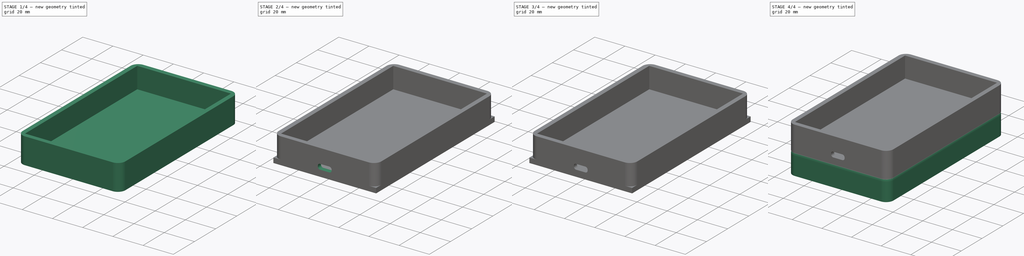
[diagram: build sequence overview — one tinted view per stage of 4, left to right]
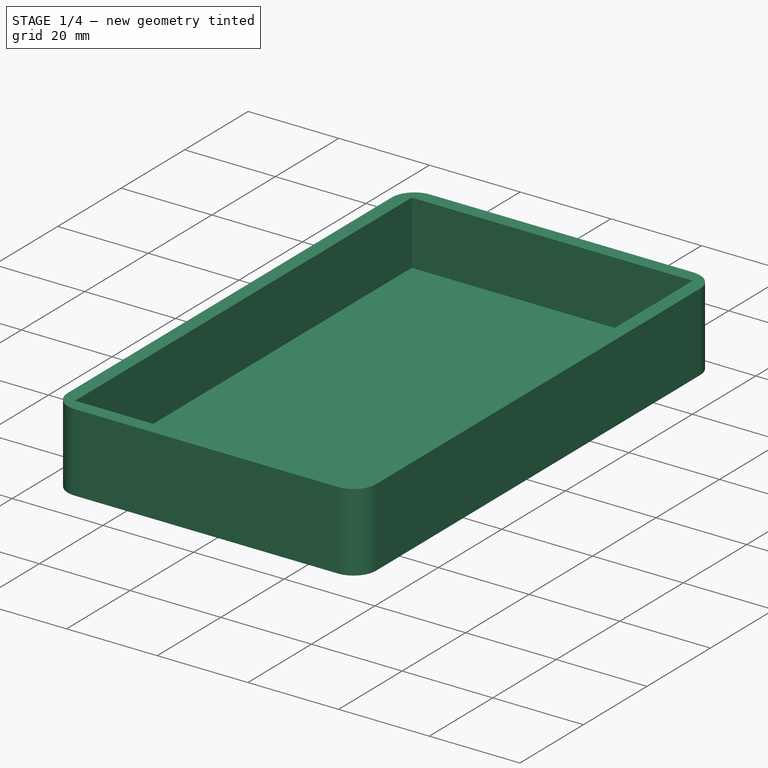
[diagram: stage 1 of 4 — iso view after this stage's code; geometry added in this stage tinted green]
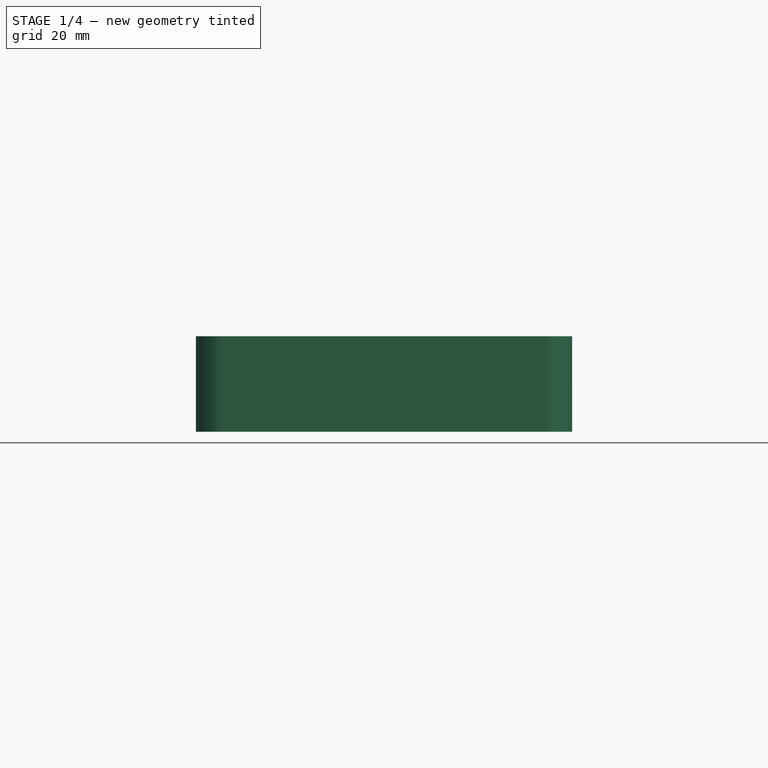
[diagram: stage 1 of 4 — front view after this stage's code; geometry added in this stage tinted green]
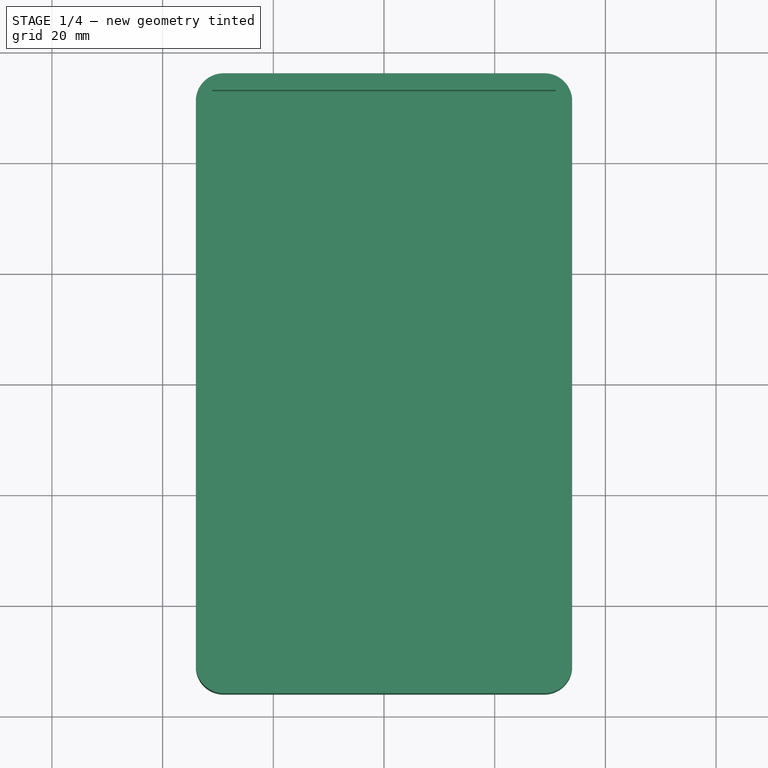
[diagram: stage 1 of 4 — top view after this stage's code; geometry added in this stage tinted green]
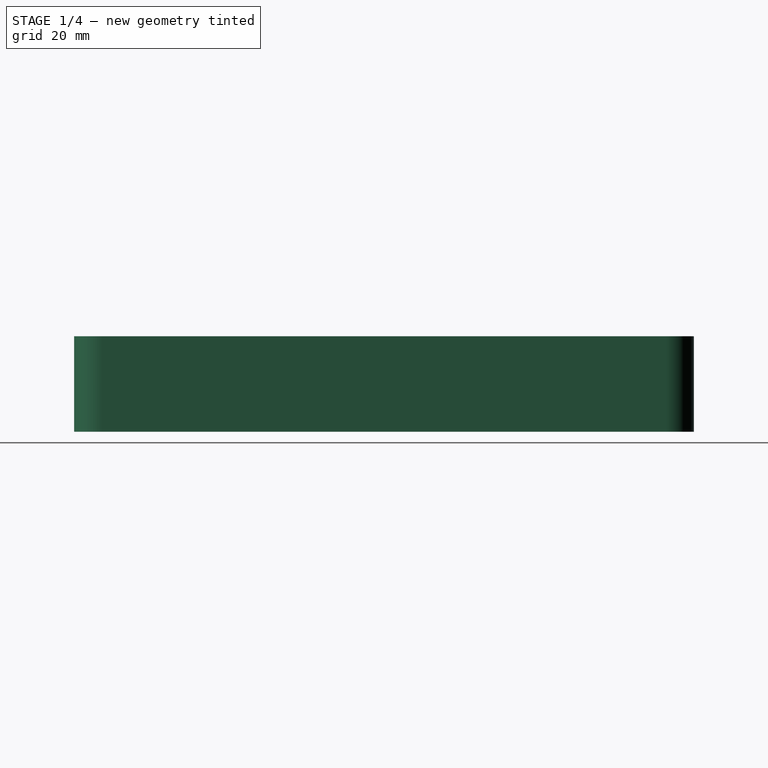
[diagram: stage 1 of 4 — right view after this stage's code; geometry added in this stage tinted green]
FCSTD DOCUMENT  (FreeCAD 1.1R38991 (Git))
Label: alarm4
License: All rights reserved
LicenseURL: https://en.wikipedia.org/wiki/All_rights_reserved
objects: Sketcher::SketchObject×9, PartDesign::Pocket×5, PartDesign::Pad×4, PartDesign::Fillet×2, PartDesign::Body×2
note: 53 computed .brp shape members not serialized (recipe doc carries the construction recipe); baked Part::Feature solids carry a one-line shape summary decoded from their .brp

FEATURE [Sketcher::SketchObject] Sketch005  label="baseSketch001"
  ArcFitTolerance = 1e-06
  AttachmentSupport = -> [XY_Plane001]
  FullyConstrained = true
  MakeInternals = false
  MapMode = 5
  sketch-geometry (4):
    g0: LineSegment StartX=-34 StartY=56 StartZ=0 EndX=-34 EndY=-56 EndZ=0
    g1: LineSegment StartX=-34 StartY=-56 StartZ=0 EndX=34 EndY=-56 EndZ=0
    g2: LineSegment StartX=34 StartY=-56 StartZ=0 EndX=34 EndY=56 EndZ=0
    g3: LineSegment StartX=34 StartY=56 StartZ=0 EndX=-34 EndY=56 EndZ=0
  constraints (9):
    c: Coincident(g0,g1)
    c: Coincident(g1,g2)
    c: Coincident(g2,g3)
    c: Coincident(g3,g0)
    c: Symmetric(g0,g2,g-2)
    c: Symmetric(g0,g0,g-1)
    c: Symmetric(g0,g1,g-2)
    c: DistanceX(g3,g3) = 68
    c: DistanceY(g0,g0) = 112
FEATURE [PartDesign::Pad] Pad002  label="basePad001"
  Direction = (0,0,1)
  Length = 3.25
  Length2 = 10
  Profile = -> Sketch005
  ReferenceAxis = -> Sketch005 [N_Axis]
  Refine = true
  Suppressed = false
  Type = 0
FEATURE [Sketcher::SketchObject] Sketch006
  ArcFitTolerance = 1e-06
  AttachmentSupport = -> [Pad002]
  ExternalGeometry = -> [Pad002]
  FullyConstrained = true
  MakeInternals = false
  MapMode = 5
  Placement = pos=(0,0,3.25) rot=(0,0,1;0rad)
  sketch-geometry (8):
    g0: LineSegment StartX=-31 StartY=53 StartZ=0 EndX=-31 EndY=-53 EndZ=0
    g1: LineSegment StartX=-31 StartY=-53 StartZ=0 EndX=31 EndY=-53 EndZ=0
    g2: LineSegment StartX=31 StartY=-53 StartZ=0 EndX=31 EndY=53 EndZ=0
    g3: LineSegment StartX=31 StartY=53 StartZ=0 EndX=-31 EndY=53 EndZ=0
    g4: LineSegment StartX=-34 StartY=56 StartZ=0 EndX=-34 EndY=-56 EndZ=0
    g5: LineSegment StartX=-34 StartY=-56 StartZ=0 EndX=34 EndY=-56 EndZ=0
    g6: LineSegment StartX=34 StartY=-56 StartZ=0 EndX=34 EndY=56 EndZ=0
    g7: LineSegment StartX=34 StartY=56 StartZ=0 EndX=-34 EndY=56 EndZ=0
  constraints (20):
    c: Coincident(g0,g1)
    c: Coincident(g1,g2)
    c: Coincident(g2,g3)
    c: Coincident(g3,g0)
    c: Vertical(g2)
    c: Horizontal(g1)
    c: Symmetric(g0,g2,g-2)
    c: Symmetric(g0,g0,g-1)
    c: Distance(g0,g-4) = 3
    c: Distance(g0,g-5) = 3
    c: Coincident(g4,g5)
    c: Coincident(g5,g6)
    c: Coincident(g6,g7)
    c: Coincident(g7,g4)
    c: Vertical(g4)
    c: Vertical(g6)
    c: Horizontal(g5)
    c: Horizontal(g7)
    c: Coincident(g4,g-5)
    c: Coincident(g5,g-6)
FEATURE [PartDesign::Pad] Pad003  label="padWall001"
  BaseFeature = -> Pad002
  Direction = (0,0,1)
  Length = 14
  Length2 = 10
  Profile = -> Sketch006
  ReferenceAxis = -> Sketch006 [N_Axis]
  Refine = true
  Suppressed = false
  Type = 0
FEATURE [PartDesign::Fillet] Fillet001  label="filletCorners"
  Base = -> Pad003 [Edge24,Edge5,Edge7,Edge23]
  BaseFeature = -> Pad003
  Radius = 5
  Refine = true
  SupportTransform = false
  Suppressed = false
  UseAllEdges = false
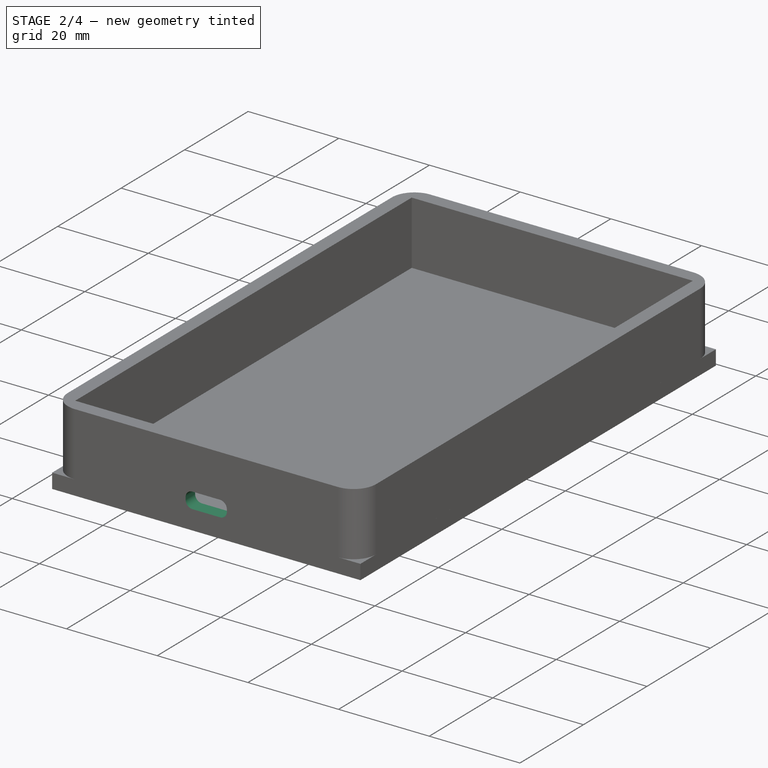
[diagram: stage 2 of 4 — iso view after this stage's code; geometry added in this stage tinted green]
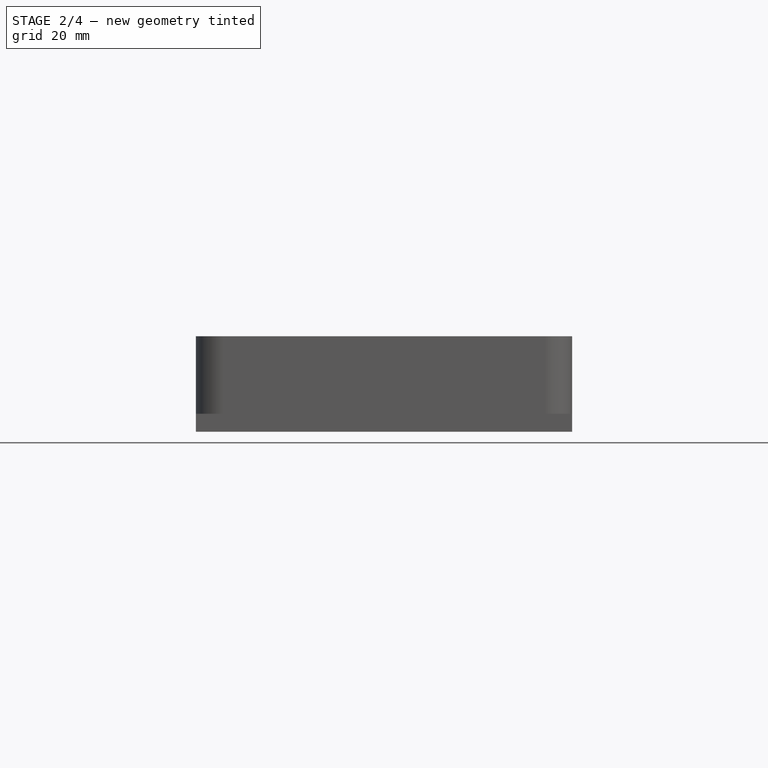
[diagram: stage 2 of 4 — front view after this stage's code; geometry added in this stage tinted green]
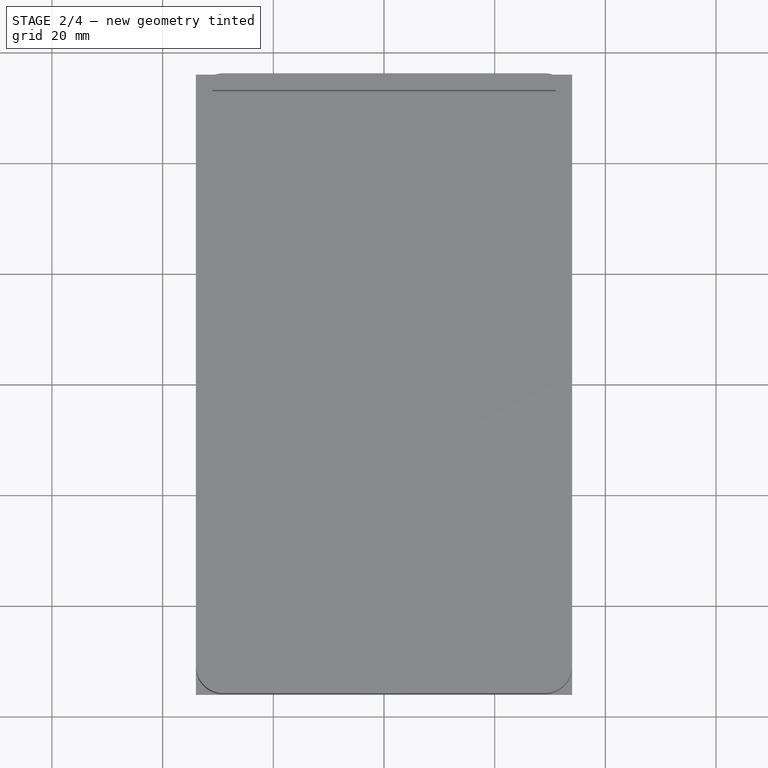
[diagram: stage 2 of 4 — top view after this stage's code; geometry added in this stage tinted green]
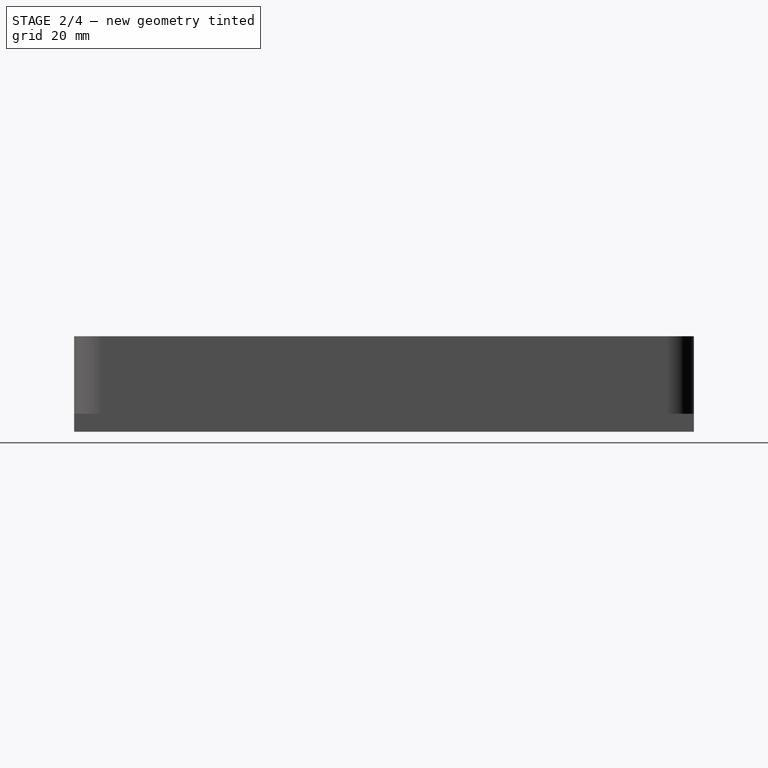
[diagram: stage 2 of 4 — right view after this stage's code; geometry added in this stage tinted green]
FEATURE [Sketcher::SketchObject] Sketch  label="baseSketch"
  ArcFitTolerance = 1e-06
  AttachmentSupport = -> [XY_Plane]
  FullyConstrained = true
  MakeInternals = false
  MapMode = 5
  sketch-geometry (4):
    g0: LineSegment StartX=-34 StartY=56 StartZ=0 EndX=-34 EndY=-56 EndZ=0
    g1: LineSegment StartX=-34 StartY=-56 StartZ=0 EndX=34 EndY=-56 EndZ=0
    g2: LineSegment StartX=34 StartY=-56 StartZ=0 EndX=34 EndY=56 EndZ=0
    g3: LineSegment StartX=34 StartY=56 StartZ=0 EndX=-34 EndY=56 EndZ=0
  constraints (9):
    c: Coincident(g0,g1)
    c: Coincident(g1,g2)
    c: Coincident(g2,g3)
    c: Coincident(g3,g0)
    c: Symmetric(g0,g2,g-2)
    c: Symmetric(g0,g0,g-1)
    c: Symmetric(g1,g0,g-2)
    c: DistanceX(g3,g3) = 68
    c: DistanceY(g0,g0) = 112
FEATURE [PartDesign::Pad] Pad  label="basePad"
  Direction = (0,0,1)
  Length = 3.25
  Length2 = 10
  Profile = -> Sketch
  ReferenceAxis = -> Sketch [N_Axis]
  Refine = true
  Suppressed = false
  Type = 0
FEATURE [Sketcher::SketchObject] Sketch001  label="sketchKeypad"
  ArcFitTolerance = 1e-06
  AttachmentSupport = -> [Pad]
  ExternalGeometry = -> [Pad]
  FullyConstrained = true
  MakeInternals = false
  MapMode = 5
  Placement = pos=(0,0,3.25) rot=(0,0,1;0rad)
  sketch-geometry (12):
    g0: LineSegment StartX=-23.1 StartY=14.9 StartZ=0 EndX=-23.1 EndY=-36.1 EndZ=0
    g1: LineSegment StartX=-20.1 StartY=-39.1 StartZ=0 EndX=20.1 EndY=-39.1 EndZ=0
    g2: LineSegment StartX=23.1 StartY=-36.1 StartZ=0 EndX=23.1 EndY=14.9 EndZ=0
    g3: LineSegment StartX=20.1 StartY=17.9 StartZ=0 EndX=-20.1 EndY=17.9 EndZ=0
    g4: ArcOfCircle CenterX=-20.1 CenterY=14.9 CenterZ=0 NormalX=0 NormalY=0 NormalZ=1 AngleXU=0 Radius=3 StartAngle=1.5708 EndAngle=3.14159
    g5: GeomPoint [constr] X=-23.1 Y=17.9 Z=0
    g6: ArcOfCircle CenterX=20.1 CenterY=14.9 CenterZ=0 NormalX=0 NormalY=0 NormalZ=1 AngleXU=0 Radius=3 StartAngle=0 EndAngle=1.5708
    g7: GeomPoint [constr] X=23.1 Y=17.9 Z=0
    g8: ArcOfCircle CenterX=20.1 CenterY=-36.1 CenterZ=0 NormalX=0 NormalY=0 NormalZ=1 AngleXU=0 Radius=3 StartAngle=4.71239 EndAngle=6.28319
    g9: GeomPoint [constr] X=23.1 Y=-39.1 Z=0
    g10: ArcOfCircle CenterX=-20.1 CenterY=-36.1 CenterZ=0 NormalX=0 NormalY=0 NormalZ=1 AngleXU=0 Radius=3 StartAngle=3.14159 EndAngle=4.71239
    g11: GeomPoint [constr] X=-23.1 Y=-39.1 Z=0
  constraints (26):
    c: Symmetric(g5,g7,g-2)
    c: Symmetric(g11,g9,g-2)
    c: Vertical(g0)
    c: DistanceX(g11,g9) = 46.2
    c: DistanceY(g9,g7) = 57
    c: Distance(g9,g-3) = 16.9
    c: PointOnObject(g5,g3)
    c: PointOnObject(g5,g0)
    c: Tangent(g3,g4) = -1.5708
    c: Tangent(g0,g4) = -1.5708
    c: PointOnObject(g7,g3)
    c: PointOnObject(g7,g2)
    c: Tangent(g3,g6) = -1.5708
    c: Tangent(g2,g6) = -1.5708
    c: PointOnObject(g9,g2)
    c: PointOnObject(g9,g1)
    c: Tangent(g2,g8) = -1.5708
    c: Tangent(g1,g8) = -1.5708
    c: PointOnObject(g11,g0)
    c: PointOnObject(g11,g1)
    c: Tangent(g0,g10) = -1.5708
    c: Tangent(g1,g10) = -1.5708
    c: Radius(g10) = 3
    c: Equal(g8,g10)
    c: Equal(g6,g10)
    c: Equal(g4,g10)
FEATURE [PartDesign::Pocket] Pocket  label="pocketKeypad"
  BaseFeature = -> Pad
  Direction = (0,0,-1)
  Length = 10
  Length2 = 5
  Profile = -> Sketch001
  ReferenceAxis = -> Sketch001 [N_Axis]
  Refine = true
  Suppressed = false
  Type = 0
FEATURE [PartDesign::Body] Body  label="front"
  AllowCompound = false
  Group = -> [Sketch,Pad,Sketch001,Pocket,Sketch002,Pocket001,Sketch003,Pocket002,Sketch004,Pad001,Fillet,Sketch008,Pocket004]
  Origin = -> Origin
  Tip = -> Pocket004
FEATURE [PartDesign::Pocket] Pocket005  label="pocketUSB"
  BaseFeature = -> Fillet001
  Direction = (0,1,-2e-16)
  Length = 5
  Length2 = 5
  Profile = -> Sketch007
  ReferenceAxis = -> Sketch007 [N_Axis]
  Refine = true
  Suppressed = false
  Type = 0
FEATURE [PartDesign::Body] Body001  label="back"
  AllowCompound = false
  Group = -> [Sketch005,Pad002,Sketch006,Pad003,Fillet001,Sketch007,Pocket005]
  Origin = -> Origin001
  Placement = pos=(0,0,-60) rot=(0,0,1;0rad)
  Tip = -> Pocket005
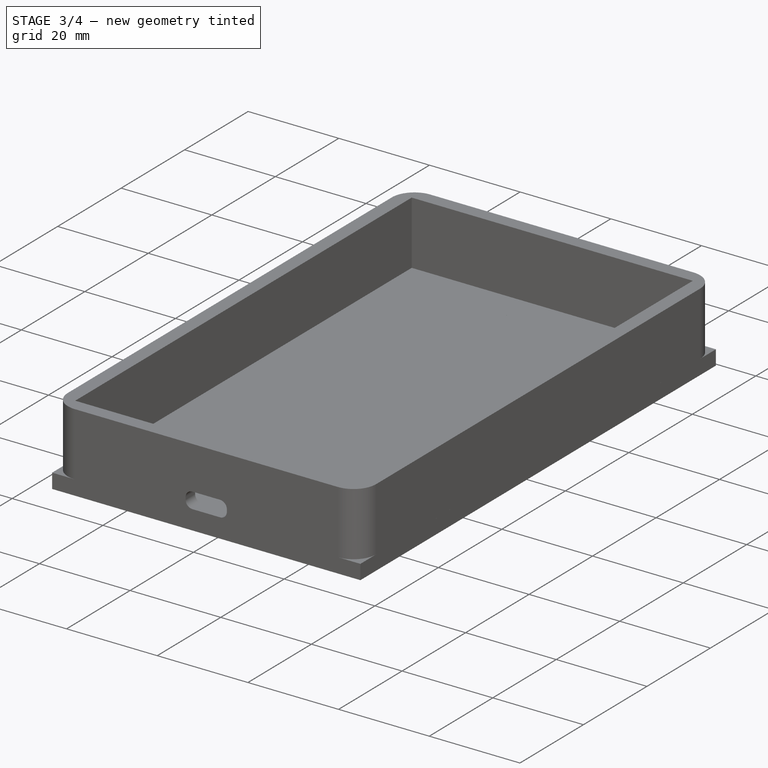
[diagram: stage 3 of 4 — iso view after this stage's code; geometry added in this stage tinted green]
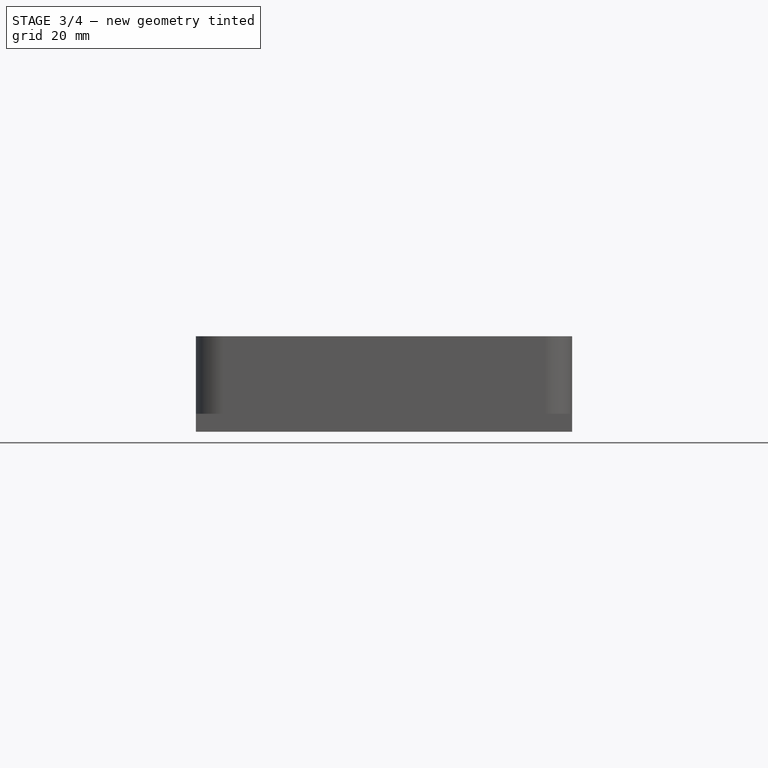
[diagram: stage 3 of 4 — front view after this stage's code; geometry added in this stage tinted green]
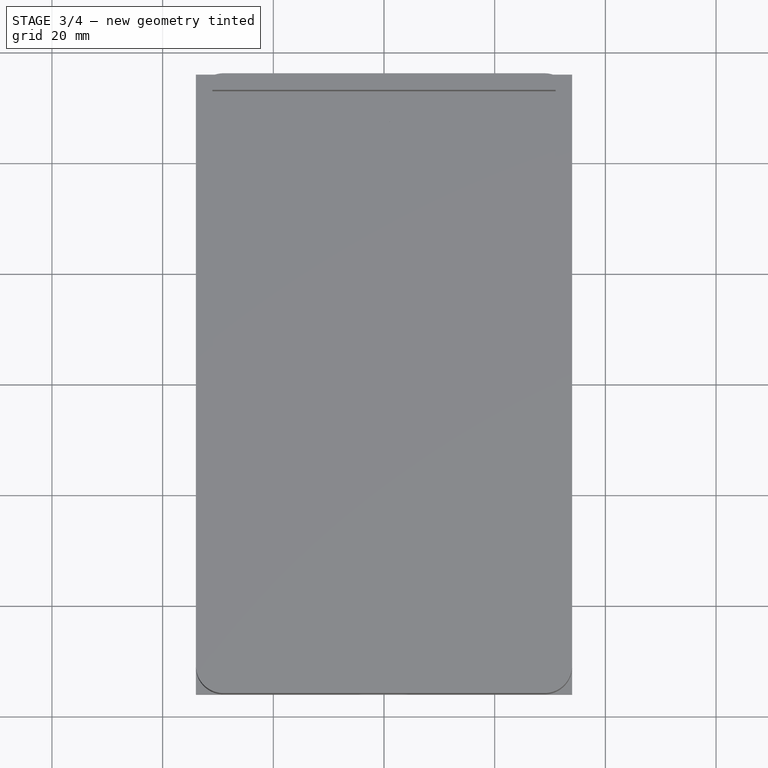
[diagram: stage 3 of 4 — top view after this stage's code; geometry added in this stage tinted green]
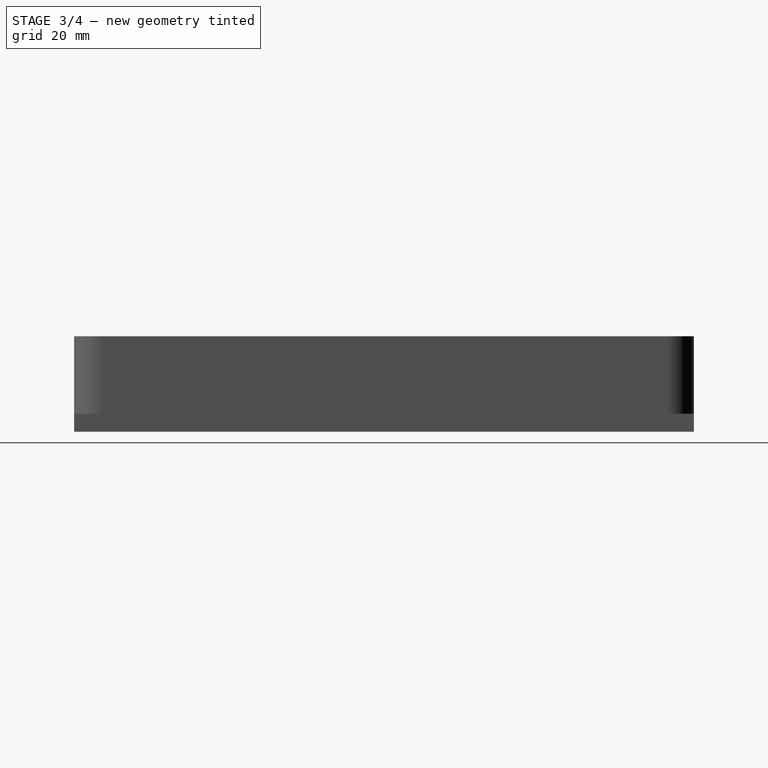
[diagram: stage 3 of 4 — right view after this stage's code; geometry added in this stage tinted green]
FEATURE [Sketcher::SketchObject] Sketch002  label="sketchPIR"
  ArcFitTolerance = 1e-06
  AttachmentSupport = -> [Pocket]
  ExternalGeometry = -> [Pocket]
  FullyConstrained = true
  MakeInternals = false
  MapMode = 5
  Placement = pos=(0,0,3.25) rot=(0,0,1;0rad)
  sketch-geometry (1):
    g0: Circle CenterX=0 CenterY=35.9 CenterZ=0 NormalX=0 NormalY=0 NormalZ=1 AngleXU=0 Radius=11.6
  constraints (3):
    c: Diameter(g0) = 23.2
    c: PointOnObject(g0,g-2)
    c: Distance(g0,g-6) = 18
FEATURE [PartDesign::Pocket] Pocket001  label="pocketPIR"
  BaseFeature = -> Pocket
  Direction = (0,0,-1)
  Length = 10
  Length2 = 5
  Profile = -> Sketch002
  ReferenceAxis = -> Sketch002 [N_Axis]
  Refine = true
  Suppressed = false
  Type = 0
FEATURE [Sketcher::SketchObject] Sketch003  label="sketchLED"
  ArcFitTolerance = 1e-06
  AttachmentSupport = -> [Pocket001]
  ExternalGeometry = -> [Pocket001]
  FullyConstrained = true
  MakeInternals = false
  MapMode = 5
  Placement = pos=(0,0,3.25) rot=(0,0,1;0rad)
  sketch-geometry (1):
    g0: Circle CenterX=23.1 CenterY=45.1 CenterZ=0 NormalX=0 NormalY=0 NormalZ=1 AngleXU=0 Radius=2.6
  constraints (3):
    c: Diameter(g0) = 5.2
    c: Distance(g0,g-3) = 10.9
    c: Distance(g0,g-4) = 10.9
FEATURE [PartDesign::Pocket] Pocket002  label="pocketLED"
  BaseFeature = -> Pocket001
  Direction = (0,0,-1)
  Length = 10
  Length2 = 5
  Profile = -> Sketch003
  ReferenceAxis = -> Sketch003 [N_Axis]
  Refine = true
  Suppressed = false
  Type = 0
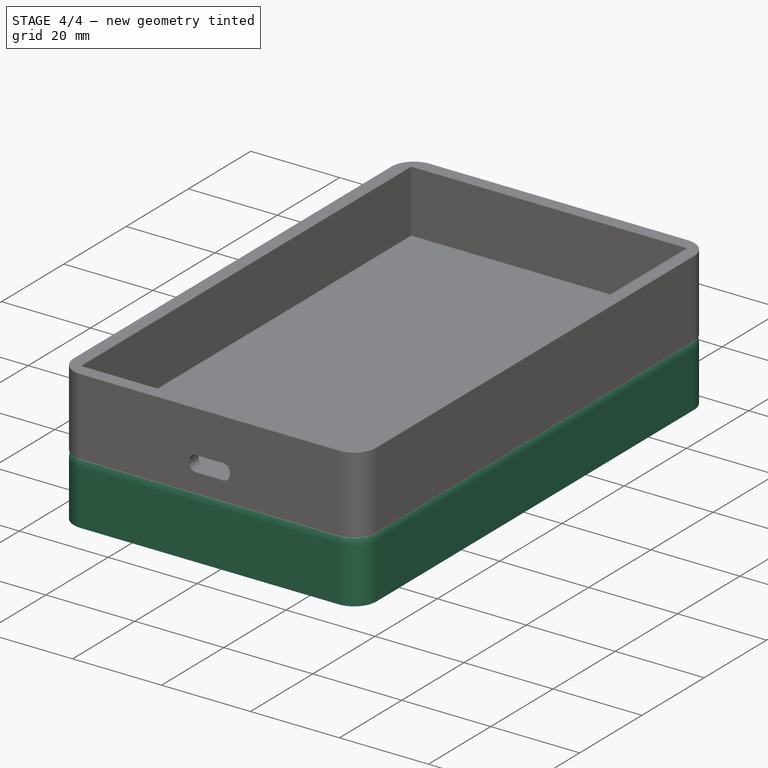
[diagram: stage 4 of 4 — iso view after this stage's code; geometry added in this stage tinted green]
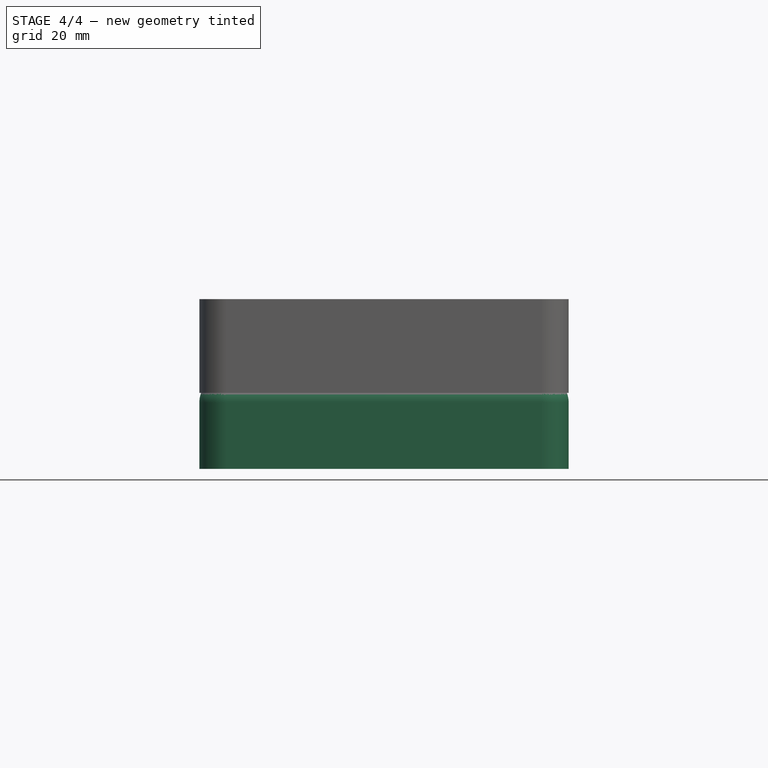
[diagram: stage 4 of 4 — front view after this stage's code; geometry added in this stage tinted green]
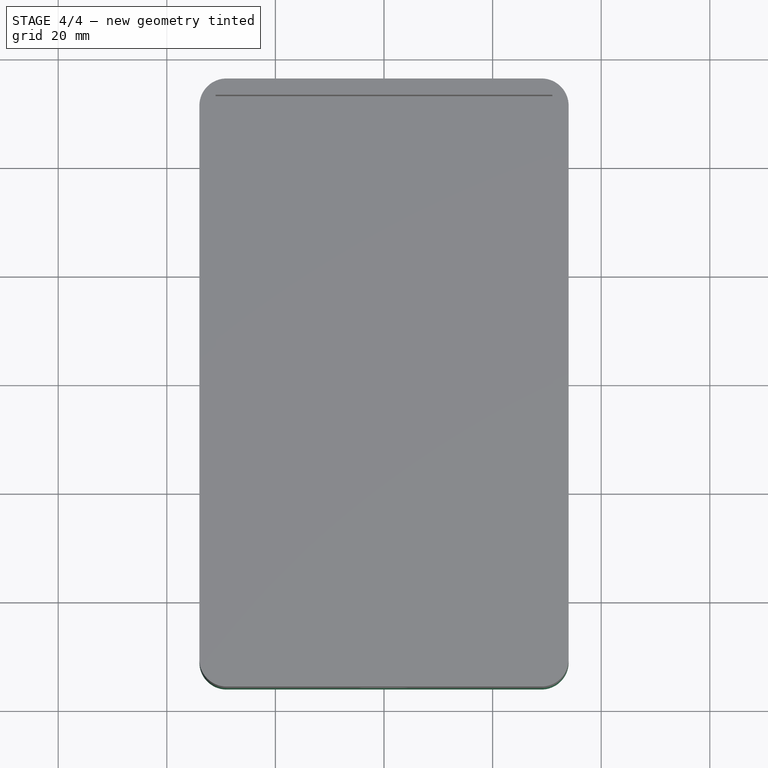
[diagram: stage 4 of 4 — top view after this stage's code; geometry added in this stage tinted green]
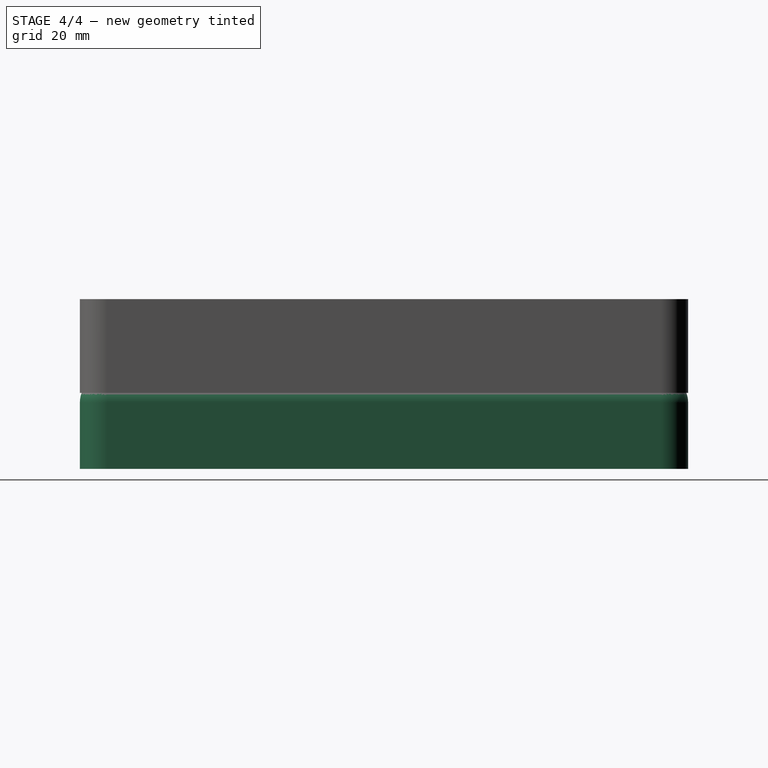
[diagram: stage 4 of 4 — right view after this stage's code; geometry added in this stage tinted green]
FEATURE [Sketcher::SketchObject] Sketch004  label="sketchWall"
  ArcFitTolerance = 1e-06
  AttachmentSupport = -> [Pocket002]
  ExternalGeometry = -> [Pocket002]
  FullyConstrained = true
  MakeInternals = false
  MapMode = 5
  Placement = pos=(0,0,0) rot=(1,0,0;3.14159rad)
  sketch-geometry (8):
    g0: LineSegment StartX=-34 StartY=56 StartZ=0 EndX=-34 EndY=-56 EndZ=0
    g1: LineSegment StartX=-34 StartY=-56 StartZ=0 EndX=34 EndY=-56 EndZ=0
    g2: LineSegment StartX=34 StartY=-56 StartZ=0 EndX=34 EndY=56 EndZ=0
    g3: LineSegment StartX=34 StartY=56 StartZ=0 EndX=-34 EndY=56 EndZ=0
    g4: LineSegment StartX=-31 StartY=53 StartZ=0 EndX=-31 EndY=-53 EndZ=0
    g5: LineSegment StartX=-31 StartY=-53 StartZ=0 EndX=31 EndY=-53 EndZ=0
    g6: LineSegment StartX=31 StartY=-53 StartZ=0 EndX=31 EndY=53 EndZ=0
    g7: LineSegment StartX=31 StartY=53 StartZ=0 EndX=-31 EndY=53 EndZ=0
  constraints (17):
    c: Coincident(g0,g1)
    c: Coincident(g1,g2)
    c: Coincident(g2,g3)
    c: Coincident(g3,g0)
    c: Coincident(g0,g-5)
    c: Coincident(g1,g-6)
    c: Coincident(g4,g5)
    c: Coincident(g5,g6)
    c: Coincident(g6,g7)
    c: Coincident(g7,g4)
    c: Coincident(g2,g-4)
    c: Coincident(g0,g-6)
    c: Symmetric(g6,g4,g-2)
    c: Symmetric(g4,g4,g-1)
    c: Symmetric(g5,g4,g-2)
    c: Distance(g6,g2) = 3
    c: Distance(g6,g3) = 3
FEATURE [PartDesign::Pad] Pad001  label="padWall"
  BaseFeature = -> Pocket002
  Direction = (0,0,-1)
  Length = 14
  Length2 = 10
  Profile = -> Sketch004
  ReferenceAxis = -> Sketch004 [N_Axis]
  Refine = true
  Suppressed = false
  Type = 0
FEATURE [PartDesign::Fillet] Fillet
  Base = -> Pad001 [Edge30,Edge29,Edge27,Edge28,Edge54,Edge52,Edge53,Edge51]
  BaseFeature = -> Pad001
  Radius = 5
  Refine = true
  SupportTransform = false
  Suppressed = false
  UseAllEdges = false
FEATURE [Sketcher::SketchObject] Sketch007  label="sketchUSB"
  ArcFitTolerance = 1e-06
  AttachmentSupport = -> [Fillet001]
  FullyConstrained = true
  MakeInternals = false
  MapMode = 5
  Placement = pos=(0,-56,0) rot=(1,0,0;1.5708rad)
  sketch-geometry (11):
    g0: LineSegment StartX=-3.05 StartY=4.25 StartZ=0 EndX=3.05 EndY=4.25 EndZ=0
    g1: LineSegment StartX=-4.55 StartY=5.75 StartZ=0 EndX=-4.55 EndY=6.25 EndZ=0
    g2: LineSegment StartX=-3.05 StartY=7.75 StartZ=0 EndX=3.05 EndY=7.75 EndZ=0
    g3: LineSegment StartX=4.55 StartY=6.25 StartZ=0 EndX=4.55 EndY=5.75 EndZ=0
    g4: ArcOfCircle CenterX=-3.05 CenterY=6.25 CenterZ=0 NormalX=0 NormalY=0 NormalZ=1 AngleXU=0 Radius=1.5 StartAngle=1.5708 EndAngle=3.14159
    g5: GeomPoint [constr] X=-4.55 Y=7.75 Z=0
    g6: ArcOfCircle CenterX=-3.05 CenterY=5.75 CenterZ=0 NormalX=0 NormalY=0 NormalZ=1 AngleXU=0 Radius=1.5 StartAngle=3.14159 EndAngle=4.71239
    g7: GeomPoint [constr] X=-4.55 Y=4.25 Z=0
    g8: ArcOfCircle CenterX=3.05 CenterY=5.75 CenterZ=0 NormalX=0 NormalY=0 NormalZ=1 AngleXU=0 Radius=1.5 StartAngle=4.71239 EndAngle=6.28319
    g9: GeomPoint [constr] X=4.55 Y=4.25 Z=0
    g10: ArcOfCircle CenterX=3.05 CenterY=6.25 CenterZ=0 NormalX=0 NormalY=0 NormalZ=1 AngleXU=0 Radius=1.5 StartAngle=1.9e-15 EndAngle=1.5708
  constraints (24):
    c: Vertical(g1)
    c: Symmetric(g7,g9,g-2)
    c: PointOnObject(g5,g2)
    c: PointOnObject(g5,g1)
    c: Tangent(g2,g4) = 1.5708
    c: Tangent(g1,g4) = 1.5708
    c: PointOnObject(g7,g0)
    c: PointOnObject(g7,g1)
    c: Tangent(g0,g6) = -1.5708
    c: Tangent(g1,g6) = 1.5708
    c: PointOnObject(g9,g0)
    c: PointOnObject(g9,g3)
    c: Tangent(g0,g8) = -1.5708
    c: Tangent(g3,g8) = 1.5708
    c: Tangent(g3,g10) = 1.5708
    c: Tangent(g2,g10) = 1.5708
    c: Equal(g4,g6)
    c: Equal(g6,g8)
    c: Equal(g8,g10)
    c: Symmetric(g2,g2,g-2)
    c: DistanceX(g1,g3) = 9.1
    c: Distance(g2,g0) = 3.5
    c: Radius(g10) = 1.5
    c: Distance(g0,g-1) = 4.25
FEATURE [Sketcher::SketchObject] Sketch008  label="socketPIRinterior"
  ArcFitTolerance = 1e-06
  AttachmentSupport = -> [Fillet]
  ExternalGeometry = -> [Fillet]
  FullyConstrained = true
  MakeInternals = false
  MapMode = 5
  Placement = pos=(0,0,0) rot=(1,0,0;3.14159rad)
  sketch-geometry (7):
    g0: LineSegment StartX=11.7 StartY=-47.75 StartZ=0 EndX=11.7 EndY=-24.05 EndZ=0
    g1: LineSegment StartX=11.7 StartY=-24.05 StartZ=0 EndX=-11.7 EndY=-24.05 EndZ=0
    g2: LineSegment StartX=-11.7 StartY=-24.05 StartZ=0 EndX=-11.7 EndY=-47.75 EndZ=0
    g3: LineSegment StartX=-11.7 StartY=-47.75 StartZ=0 EndX=11.7 EndY=-47.75 EndZ=0
    g4: GeomPoint X=0 Y=-24.05 Z=0
    g5: GeomPoint X=0 Y=-47.75 Z=0
    g6: LineSegment [constr] StartX=-11.7 StartY=-35.9 StartZ=0 EndX=11.7 EndY=-35.9 EndZ=0
  constraints (17):
    c: Coincident(g0,g1)
    c: Coincident(g1,g2)
    c: Coincident(g2,g3)
    c: Coincident(g3,g0)
    c: Vertical(g0)
    c: Vertical(g2)
    c: Horizontal(g1)
    c: Symmetric(g0,g2,g-2)
    c: DistanceX(g3,g3) = 23.4
    c: DistanceY(g0,g0) = 23.7
    c: PointOnObject(g4,g1)
    c: PointOnObject(g5,g3)
    c: PointOnObject(g5,g-2)
    c: PointOnObject(g4,g-2)
    c: Symmetric(g2,g2,g6)
    c: PointOnObject(g-3,g6)
    c: Symmetric(g6,g6,g-2)
FEATURE [PartDesign::Pocket] Pocket004  label="pocketPIRinterior"
  BaseFeature = -> Fillet
  Direction = (0,0,1)
  Length = 1
  Length2 = 5
  Profile = -> Sketch008
  ReferenceAxis = -> Sketch008 [N_Axis]
  Refine = true
  Suppressed = false
  Type = 0
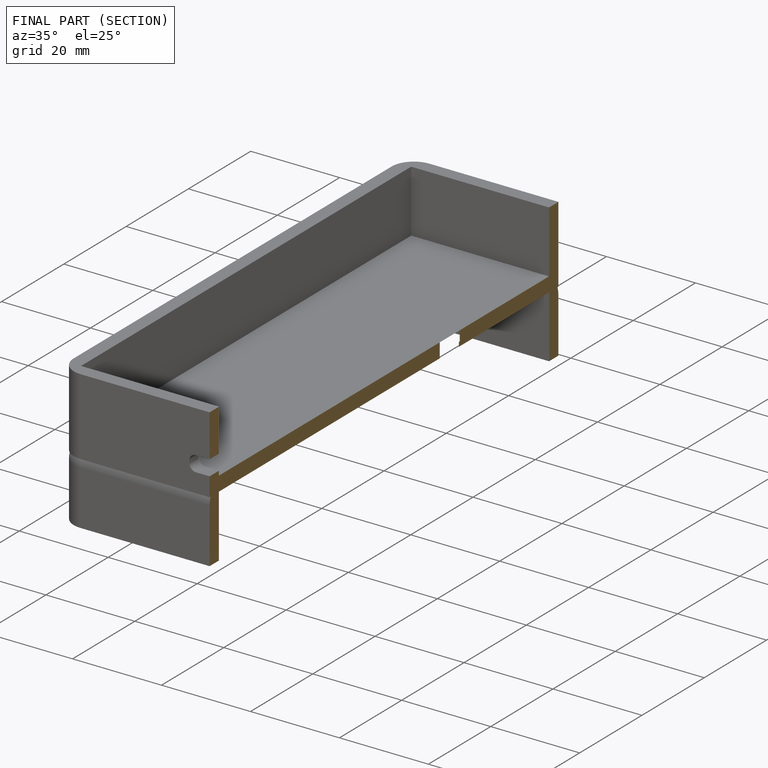
[diagram: finished part — half-section view (interior)]
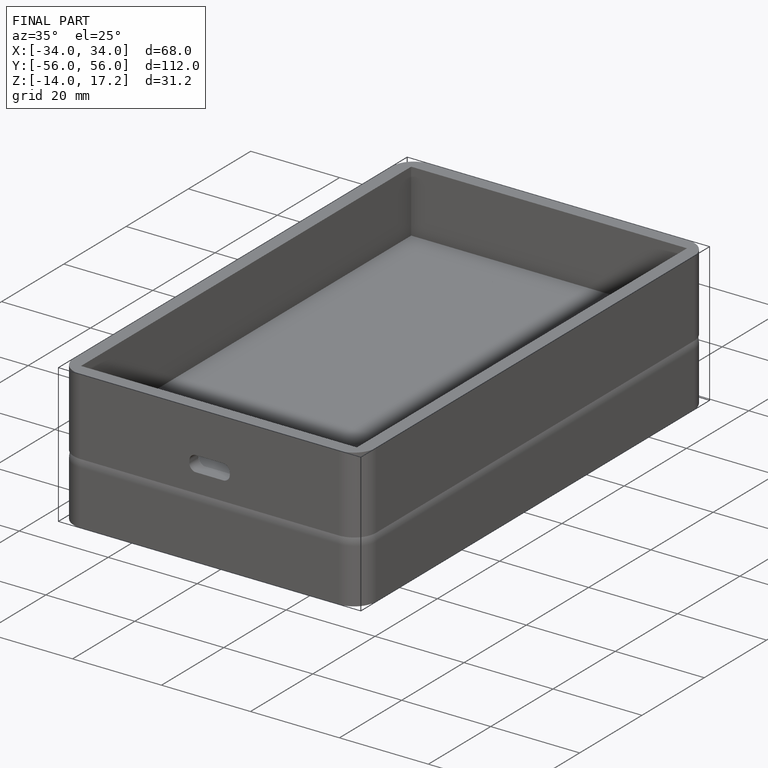
[diagram: finished part — iso view with bounding-box wireframe]
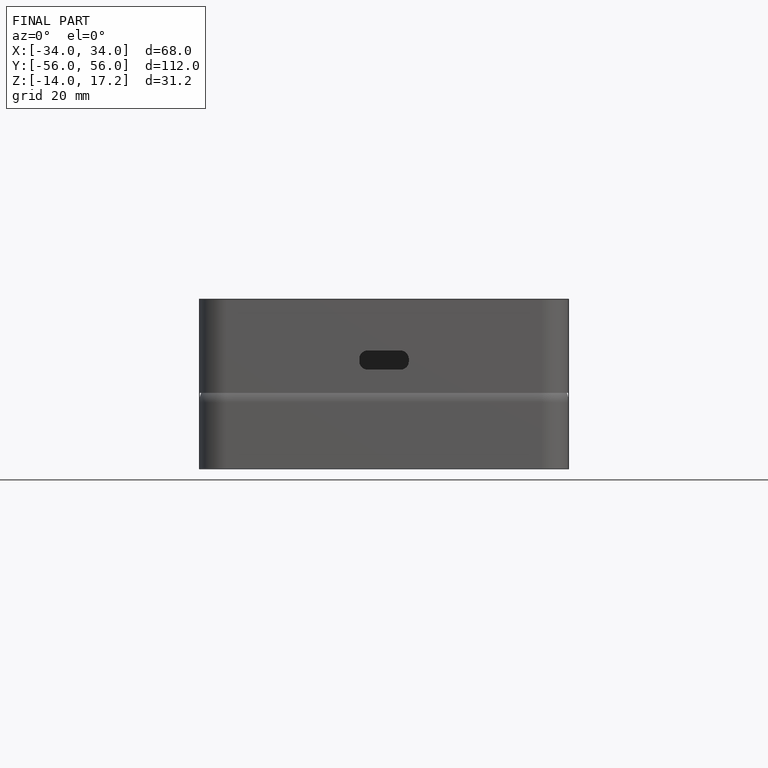
[diagram: finished part — front view with bounding-box wireframe]
